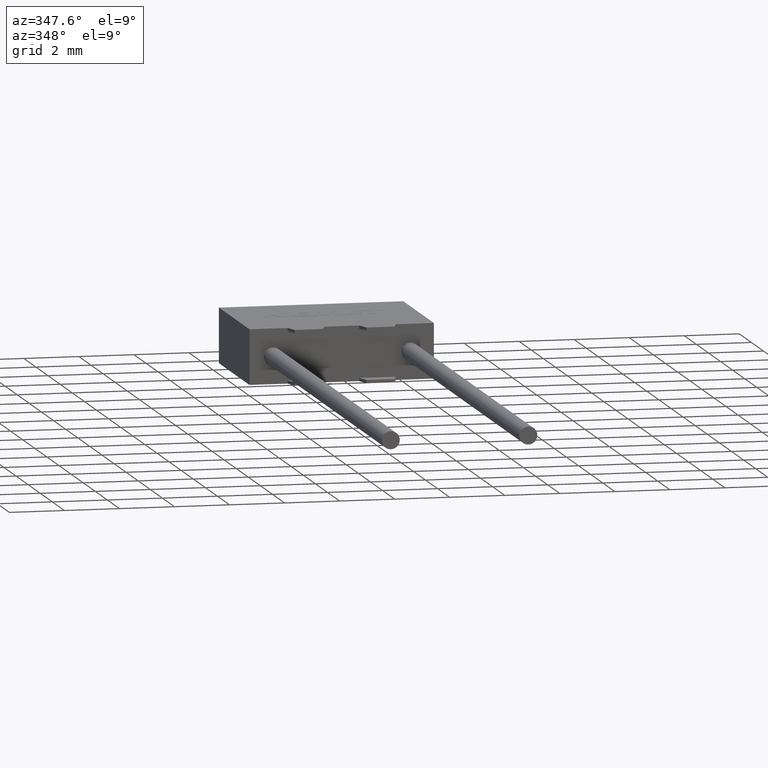
[diagram: clean part render]
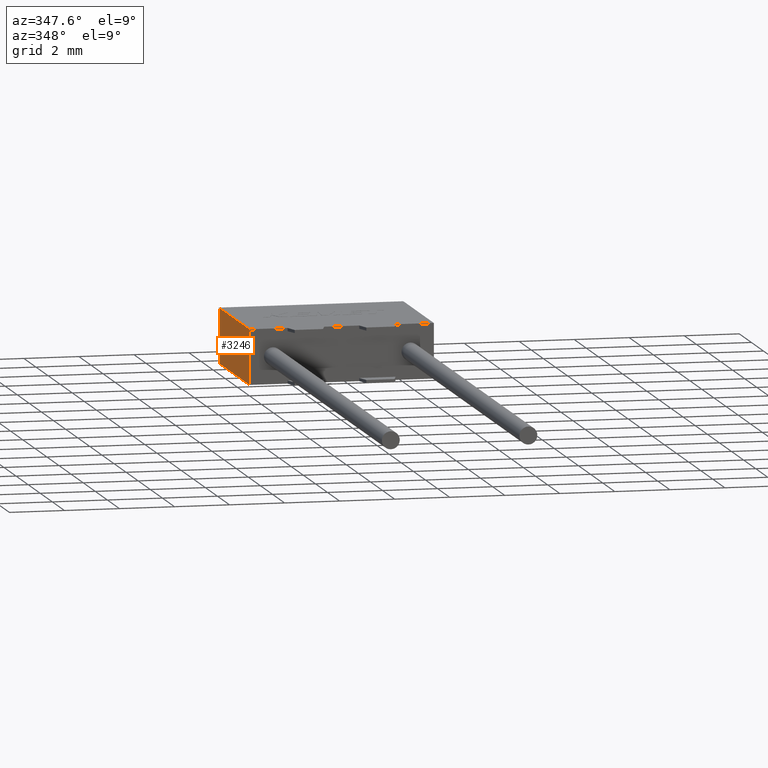
[diagram: same view with one face highlighted and labeled with its STEP entity id]
A machine part, auxiliary view. The second image highlights one B-rep face of the part: STEP entity #3246.
In plain terms, the highlighted planar face has unit normal (1, 0, 0).
Its self-contained STEP definition (entity closure, byte-faithful):
#162 = CARTESIAN_POINT ( 'NONE',  ( 0.0000000000000000000, 4.999999999999999100, 0.0000000000000000000 ) ) ;
#224 = LINE ( 'NONE', #3019, #3042 ) ;
#245 = CARTESIAN_POINT ( 'NONE',  ( 0.0000000000000000000, 0.0000000000000000000, 2.000000000000000000 ) ) ;
#250 = CARTESIAN_POINT ( 'NONE',  ( 0.0000000000000000000, 4.999999999999999100, 2.000000000000000000 ) ) ;
#324 = EDGE_CURVE ( 'NONE', #1487, #348, #2094, .T. ) ;
#348 = VERTEX_POINT ( 'NONE', #162 ) ;
#436 = EDGE_LOOP ( 'NONE', ( #855, #682, #1710, #1977 ) ) ;
#525 = EDGE_CURVE ( 'NONE', #831, #1320, #802, .T. ) ;
#682 = ORIENTED_EDGE ( 'NONE', *, *, #324, .T. ) ;
#706 = CARTESIAN_POINT ( 'NONE',  ( 0.0000000000000000000, 0.0000000000000000000, 2.000000000000000000 ) ) ;
#802 = LINE ( 'NONE', #706, #2335 ) ;
#805 = EDGE_CURVE ( 'NONE', #348, #1320, #2721, .T. ) ;
#831 = VERTEX_POINT ( 'NONE', #245 ) ;
#855 = ORIENTED_EDGE ( 'NONE', *, *, #2150, .F. ) ;
#1260 = CARTESIAN_POINT ( 'NONE',  ( 0.0000000000000000000, 0.0000000000000000000, 0.0000000000000000000 ) ) ;
#1320 = VERTEX_POINT ( 'NONE', #1351 ) ;
#1338 = VECTOR ( 'NONE', #3139, 1000.000000000000000 ) ;
#1351 = CARTESIAN_POINT ( 'NONE',  ( 0.0000000000000000000, 0.0000000000000000000, 0.0000000000000000000 ) ) ;
#1460 = DIRECTION ( 'NONE',  ( 0.0000000000000000000, 0.0000000000000000000, -1.000000000000000000 ) ) ;
#1475 = FACE_OUTER_BOUND ( 'NONE', #436, .T. ) ;
#1487 = VERTEX_POINT ( 'NONE', #250 ) ;
#1710 = ORIENTED_EDGE ( 'NONE', *, *, #805, .T. ) ;
#1785 = AXIS2_PLACEMENT_3D ( 'NONE', #2889, #2675, #1460 ) ;
#1952 = VECTOR ( 'NONE', #2771, 1000.000000000000000 ) ;
#1977 = ORIENTED_EDGE ( 'NONE', *, *, #525, .F. ) ;
#2094 = LINE ( 'NONE', #2914, #1338 ) ;
#2113 = DIRECTION ( 'NONE',  ( -0.0000000000000000000, -1.000000000000000000, -0.0000000000000000000 ) ) ;
#2150 = EDGE_CURVE ( 'NONE', #1487, #831, #224, .T. ) ;
#2335 = VECTOR ( 'NONE', #3156, 1000.000000000000000 ) ;
#2406 = PLANE ( 'NONE',  #1785 ) ;
#2675 = DIRECTION ( 'NONE',  ( 1.000000000000000000, 0.0000000000000000000, 0.0000000000000000000 ) ) ;
#2721 = LINE ( 'NONE', #1260, #1952 ) ;
#2771 = DIRECTION ( 'NONE',  ( -0.0000000000000000000, -1.000000000000000000, -0.0000000000000000000 ) ) ;
#2889 = CARTESIAN_POINT ( 'NONE',  ( 0.0000000000000000000, 0.0000000000000000000, 2.000000000000000000 ) ) ;
#2914 = CARTESIAN_POINT ( 'NONE',  ( 0.0000000000000000000, 4.999999999999999100, 2.000000000000000000 ) ) ;
#3019 = CARTESIAN_POINT ( 'NONE',  ( 0.0000000000000000000, 0.0000000000000000000, 2.000000000000000000 ) ) ;
#3042 = VECTOR ( 'NONE', #2113, 1000.000000000000000 ) ;
#3139 = DIRECTION ( 'NONE',  ( 0.0000000000000000000, 0.0000000000000000000, -1.000000000000000000 ) ) ;
#3156 = DIRECTION ( 'NONE',  ( -0.0000000000000000000, -0.0000000000000000000, -1.000000000000000000 ) ) ;
#3246 = ADVANCED_FACE ( 'NONE', ( #1475 ), #2406, .F. ) ;